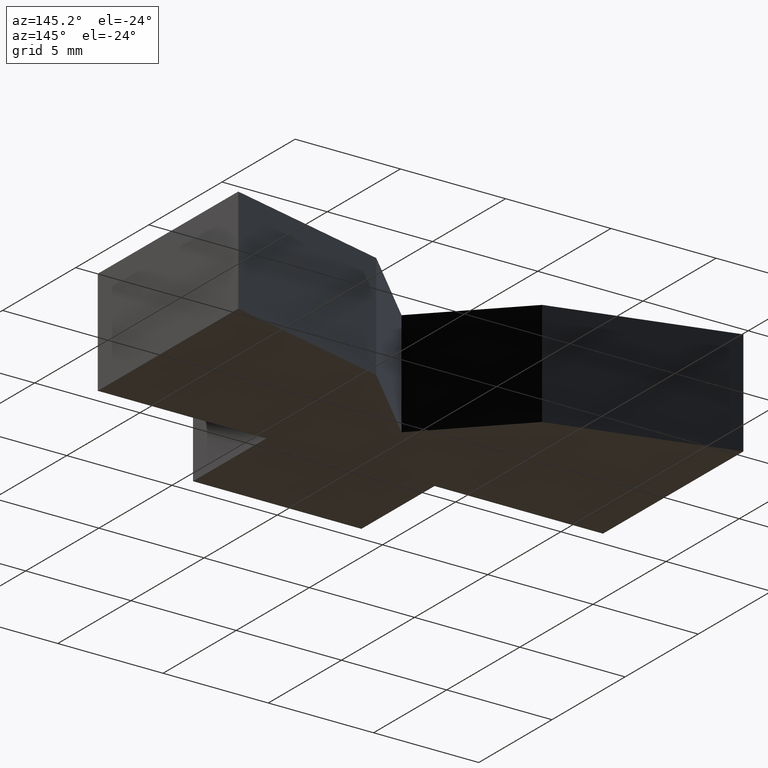
[diagram: clean part render]
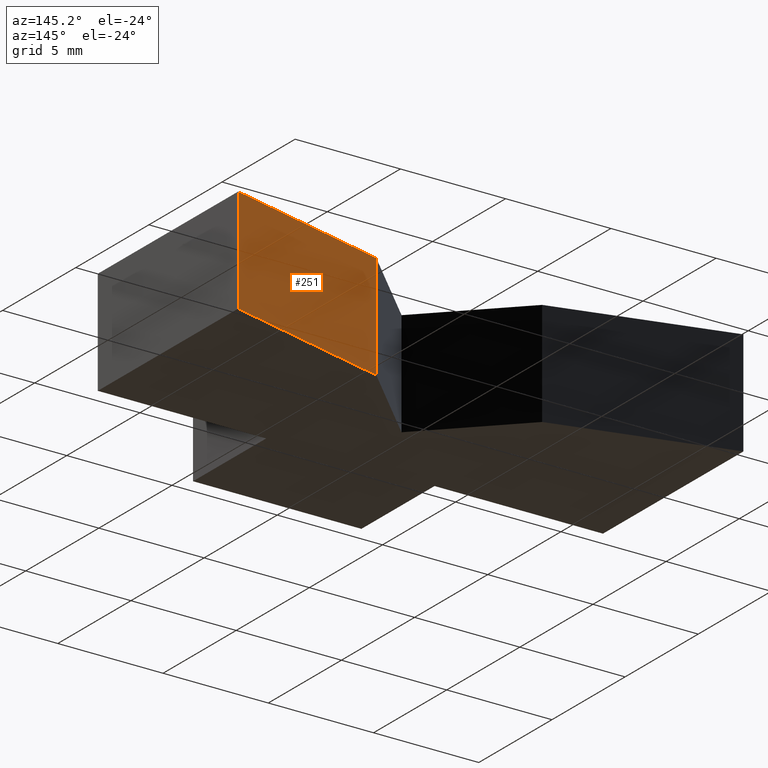
[diagram: same view with one face highlighted and labeled with its STEP entity id]
A machine part, auxiliary view. The second image highlights one B-rep face of the part: STEP entity #251.
In plain terms, the highlighted planar face has unit normal (-0.2588, 0.9659, 0).
Its self-contained STEP definition (entity closure, byte-faithful):
#25=FACE_OUTER_BOUND('',#38,.T.);
#38=EDGE_LOOP('',(#206,#207,#208,#209));
#52=LINE('',#375,#85);
#69=LINE('',#409,#102);
#70=LINE('',#412,#103);
#71=LINE('',#413,#104);
#85=VECTOR('',#305,10.);
#102=VECTOR('',#338,10.);
#103=VECTOR('',#341,10.);
#104=VECTOR('',#342,10.);
#109=VERTEX_POINT('',#355);
#118=VERTEX_POINT('',#373);
#127=VERTEX_POINT('',#407);
#128=VERTEX_POINT('',#411);
#140=EDGE_CURVE('',#109,#118,#52,.T.);
#157=EDGE_CURVE('',#118,#127,#69,.T.);
#158=EDGE_CURVE('',#127,#128,#70,.T.);
#159=EDGE_CURVE('',#109,#128,#71,.T.);
#206=ORIENTED_EDGE('',*,*,#158,.T.);
#207=ORIENTED_EDGE('',*,*,#159,.F.);
#208=ORIENTED_EDGE('',*,*,#140,.T.);
#209=ORIENTED_EDGE('',*,*,#157,.T.);
#238=PLANE('',#287);
#251=ADVANCED_FACE('',(#25),#238,.T.);
#287=AXIS2_PLACEMENT_3D('',#410,#339,#340);
#305=DIRECTION('',(-0.965925826289068,-0.25881904510252,0.));
#338=DIRECTION('',(0.,0.,1.));
#339=DIRECTION('center_axis',(-0.25881904510252,0.965925826289068,0.));
#340=DIRECTION('ref_axis',(0.,0.,1.));
#341=DIRECTION('',(0.965925826289068,0.25881904510252,0.));
#342=DIRECTION('',(0.,0.,1.));
#355=CARTESIAN_POINT('',(12.,9.6,-2.5));
#373=CARTESIAN_POINT('',(3.94045011767181,7.44045011767182,-2.5));
#375=CARTESIAN_POINT('',(12.,9.6,-2.5));
#407=CARTESIAN_POINT('',(3.94045011767181,7.44045011767182,2.5));
#409=CARTESIAN_POINT('',(3.94045011767181,7.44045011767182,0.));
#410=CARTESIAN_POINT('Origin',(3.94045011767181,7.44045011767182,0.));
#411=CARTESIAN_POINT('',(12.,9.6,2.5));
#412=CARTESIAN_POINT('',(12.,9.6,2.5));
#413=CARTESIAN_POINT('',(12.,9.6,0.));